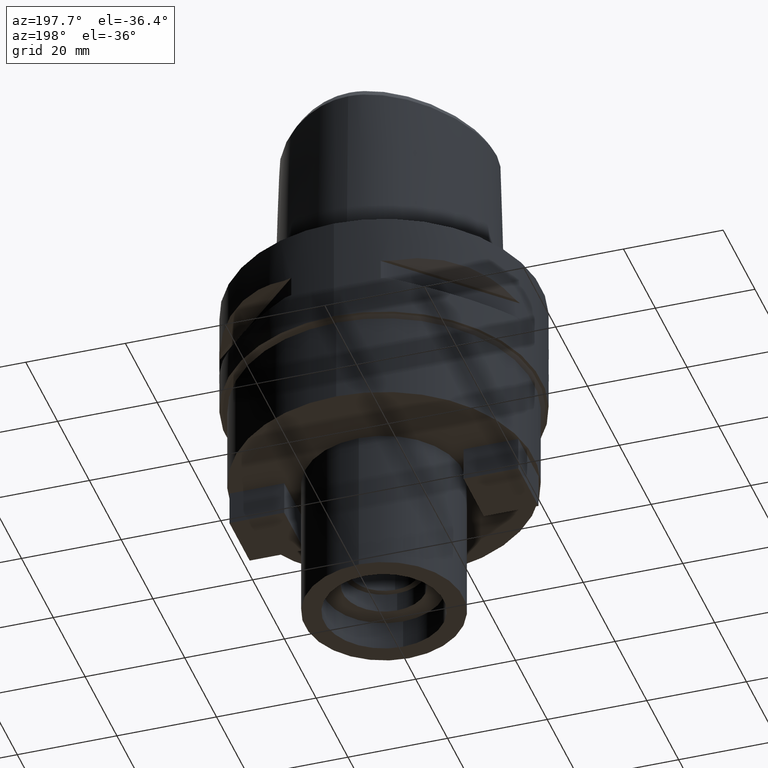
[diagram: clean part render]
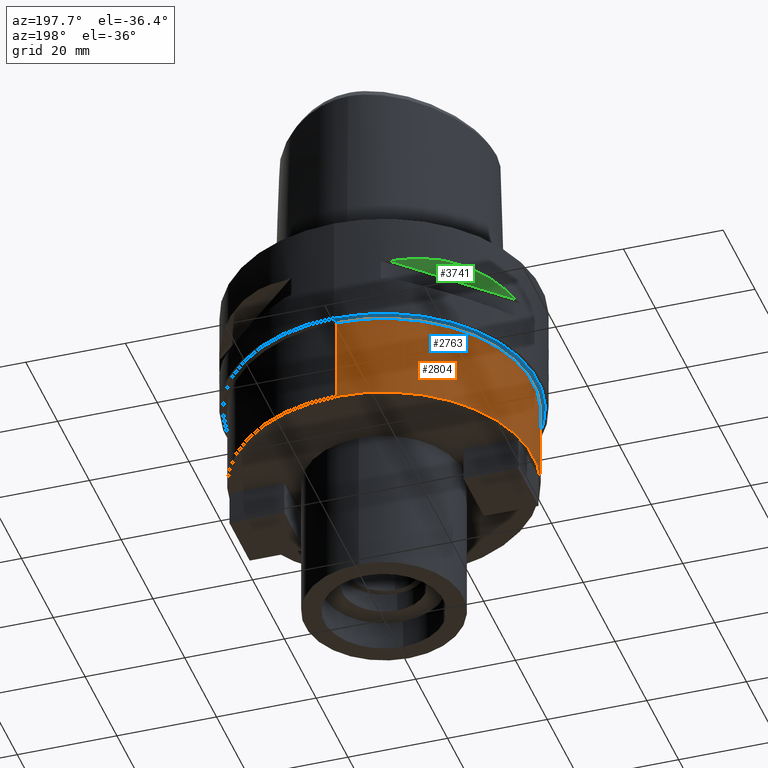
[diagram: same view with three faces highlighted in distinct colors, each labeled with its STEP entity id]
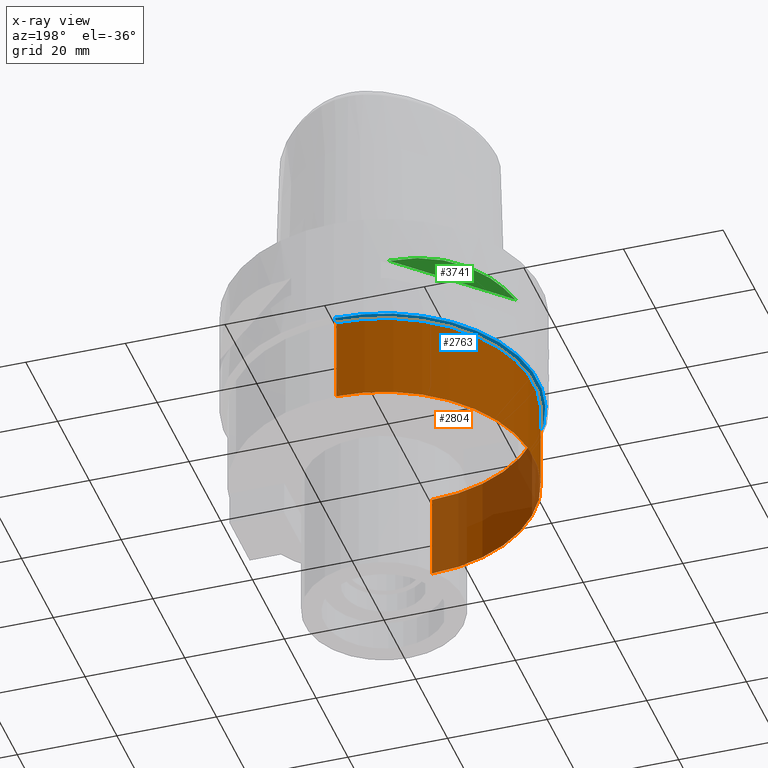
[diagram: x-ray of the same camera — body ghosted, the three highlighted faces saturated]
A machine part, auxiliary view with three faces highlighted in distinct colors.
The next image is the same camera in x-ray (body ghosted, the three faces saturated) — at least one of them is partly hidden behind the body in this view.
Their STEP definitions:

[orange] entity #2804 — the highlighted cylindrical surface (partial cylindrical patch) has radius 30 mm, axis along (0, 0, -1).
#554=CARTESIAN_POINT('',(0.E0,0.E0,-2.25E1));
#555=DIRECTION('',(0.E0,0.E0,-1.E0));
#556=DIRECTION('',(0.E0,-1.E0,0.E0));
#557=AXIS2_PLACEMENT_3D('',#554,#555,#556);
#577=DIRECTION('',(0.E0,1.218073261303E-14,-1.E0));
#578=VECTOR('',#577,1.75E1);
#579=CARTESIAN_POINT('',(0.E0,3.E1,-2.25E1));
#580=LINE('',#579,#578);
#584=DIRECTION('',(0.E0,-1.197772040281E-14,-1.E0));
#585=VECTOR('',#584,1.75E1);
#586=CARTESIAN_POINT('',(0.E0,-3.E1,-2.25E1));
#587=LINE('',#586,#585);
#599=CARTESIAN_POINT('',(0.E0,1.267509437118E-14,-4.E1));
#600=DIRECTION('',(0.E0,0.E0,1.E0));
#601=DIRECTION('',(0.E0,1.E0,0.E0));
#602=AXIS2_PLACEMENT_3D('',#599,#600,#601);
#1818=CARTESIAN_POINT('',(0.E0,3.E1,-2.25E1));
#1819=VERTEX_POINT('',#1818);
#1820=CARTESIAN_POINT('',(0.E0,-3.E1,-2.25E1));
#1821=VERTEX_POINT('',#1820);
#1822=CARTESIAN_POINT('',(0.E0,3.E1,-4.E1));
#1823=VERTEX_POINT('',#1822);
#1824=CARTESIAN_POINT('',(0.E0,-3.E1,-4.E1));
#1825=VERTEX_POINT('',#1824);
#2792=CARTESIAN_POINT('',(0.E0,1.267509437118E-14,3.5E0));
#2793=DIRECTION('',(0.E0,0.E0,-1.E0));
#2794=DIRECTION('',(0.E0,-1.E0,0.E0));
#2795=AXIS2_PLACEMENT_3D('',#2792,#2793,#2794);
#2796=CYLINDRICAL_SURFACE('',#2795,3.E1);
#2797=ORIENTED_EDGE('',*,*,#2782,.F.);
#2798=ORIENTED_EDGE('',*,*,#2759,.F.);
#2799=ORIENTED_EDGE('',*,*,#2786,.T.);
#2801=ORIENTED_EDGE('',*,*,#2800,.F.);
#2802=EDGE_LOOP('',(#2797,#2798,#2799,#2801));
#2803=FACE_OUTER_BOUND('',#2802,.F.);
#558=CIRCLE('',#557,3.E1);
#603=CIRCLE('',#602,3.E1);
#2759=EDGE_CURVE('',#1821,#1819,#558,.T.);
#2782=EDGE_CURVE('',#1819,#1823,#580,.T.);
#2786=EDGE_CURVE('',#1821,#1825,#587,.T.);
#2800=EDGE_CURVE('',#1823,#1825,#603,.T.);
#2804=ADVANCED_FACE('',(#2803),#2796,.T.);

[blue] entity #2763 — the highlighted conical surface has half-angle 60.129 deg.
#531=CARTESIAN_POINT('',(0.E0,0.E0,-2.2E1));
#532=DIRECTION('',(0.E0,0.E0,-1.E0));
#533=DIRECTION('',(0.E0,-1.E0,0.E0));
#534=AXIS2_PLACEMENT_3D('',#531,#532,#533);
#547=DIRECTION('',(0.E0,8.671461812511E-1,-4.980537123059E-1));
#548=VECTOR('',#547,1.003907786741E0);
#549=CARTESIAN_POINT('',(0.E0,-3.087053480360E1,-2.2E1));
#550=LINE('',#549,#548);
#554=CARTESIAN_POINT('',(0.E0,0.E0,-2.25E1));
#555=DIRECTION('',(0.E0,0.E0,-1.E0));
#556=DIRECTION('',(0.E0,-1.E0,0.E0));
#557=AXIS2_PLACEMENT_3D('',#554,#555,#556);
#562=DIRECTION('',(0.E0,-8.671461812511E-1,-4.980537123059E-1));
#563=VECTOR('',#562,1.003907786741E0);
#564=CARTESIAN_POINT('',(0.E0,3.087053480360E1,-2.2E1));
#565=LINE('',#564,#563);
#1814=CARTESIAN_POINT('',(0.E0,-3.087053480360E1,-2.2E1));
#1815=CARTESIAN_POINT('',(0.E0,3.087053480360E1,-2.2E1));
#1816=VERTEX_POINT('',#1814);
#1817=VERTEX_POINT('',#1815);
#1818=CARTESIAN_POINT('',(0.E0,3.E1,-2.25E1));
#1819=VERTEX_POINT('',#1818);
#1820=CARTESIAN_POINT('',(0.E0,-3.E1,-2.25E1));
#1821=VERTEX_POINT('',#1820);
#2749=CARTESIAN_POINT('',(0.E0,0.E0,-2.225E1));
#2750=DIRECTION('',(0.E0,0.E0,1.E0));
#2751=DIRECTION('',(0.E0,1.E0,0.E0));
#2752=AXIS2_PLACEMENT_3D('',#2749,#2750,#2751);
#2753=CONICAL_SURFACE('',#2752,3.043526740180E1,6.012868203554E1);
#2755=ORIENTED_EDGE('',*,*,#2754,.F.);
#2756=ORIENTED_EDGE('',*,*,#2742,.F.);
#2758=ORIENTED_EDGE('',*,*,#2757,.T.);
#2760=ORIENTED_EDGE('',*,*,#2759,.T.);
#2761=EDGE_LOOP('',(#2755,#2756,#2758,#2760));
#2762=FACE_OUTER_BOUND('',#2761,.F.);
#535=CIRCLE('',#534,3.087053480360E1);
#558=CIRCLE('',#557,3.E1);
#2742=EDGE_CURVE('',#1816,#1817,#535,.T.);
#2754=EDGE_CURVE('',#1817,#1819,#565,.T.);
#2757=EDGE_CURVE('',#1816,#1821,#550,.T.);
#2759=EDGE_CURVE('',#1821,#1819,#558,.T.);
#2763=ADVANCED_FACE('',(#2762),#2753,.T.);

[green] entity #3741 — the highlighted planar face has unit normal (0.3536, -0.3536, 0.866).
#1586=CARTESIAN_POINT('',(-1.044775724750E1,2.971690375018E1,
-9.949999999999E0));
#1587=CARTESIAN_POINT('',(-1.282388988809E1,2.888151197365E1,
-9.320995176198E0));
#1588=CARTESIAN_POINT('',(-1.711282138769E1,2.674739463903E1,
-8.441295977074E0));
#1589=CARTESIAN_POINT('',(-2.244574140438E1,2.244574140438E1,
-8.020283076294E0));
#1590=CARTESIAN_POINT('',(-2.674739463903E1,1.711282138769E1,
-8.441295977074E0));
#1591=CARTESIAN_POINT('',(-2.888151197365E1,1.282388988809E1,
-9.320995176198E0));
#1592=CARTESIAN_POINT('',(-2.971690375018E1,1.044775724750E1,
-9.949999999999E0));
#1613=DIRECTION('',(-7.071067811865E-1,-7.071067811865E-1,0.E0));
#1614=VECTOR('',#1613,2.725068831944E1);
#1615=CARTESIAN_POINT('',(-1.044775724750E1,2.971690375018E1,
-9.949999999999E0));
#1616=LINE('',#1615,#1614);
#1762=VERTEX_POINT('',#1586);
#1763=VERTEX_POINT('',#1592);
#3731=CARTESIAN_POINT('',(-3.712310601229E1,8.838834764832E0,
-7.583270440699E0));
#3732=DIRECTION('',(3.535533905933E-1,-3.535533905933E-1,8.660254037844E-1));
#3733=DIRECTION('',(6.123724356958E-1,-6.123724356958E-1,-5.E-1));
#3734=AXIS2_PLACEMENT_3D('',#3731,#3732,#3733);
#3735=PLANE('',#3734);
#3736=ORIENTED_EDGE('',*,*,#2647,.T.);
#3738=ORIENTED_EDGE('',*,*,#3737,.F.);
#3739=EDGE_LOOP('',(#3736,#3738));
#3740=FACE_OUTER_BOUND('',#3739,.F.);
#1593=B_SPLINE_CURVE_WITH_KNOTS('',3,(#1586,#1587,#1588,#1589,#1590,#1591,
#1592),.UNSPECIFIED.,.F.,.F.,(4,1,1,1,4),(0.E0,2.5E-1,5.E-1,7.5E-1,1.E0),
.UNSPECIFIED.);
#2647=EDGE_CURVE('',#1762,#1763,#1593,.T.);
#3737=EDGE_CURVE('',#1762,#1763,#1616,.T.);
#3741=ADVANCED_FACE('',(#3740),#3735,.F.);